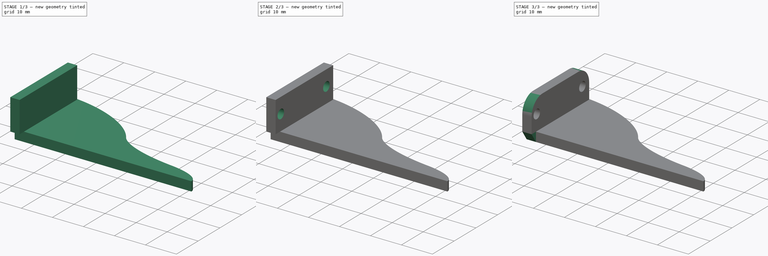
[diagram: build sequence overview — one tinted view per stage of 3, left to right]
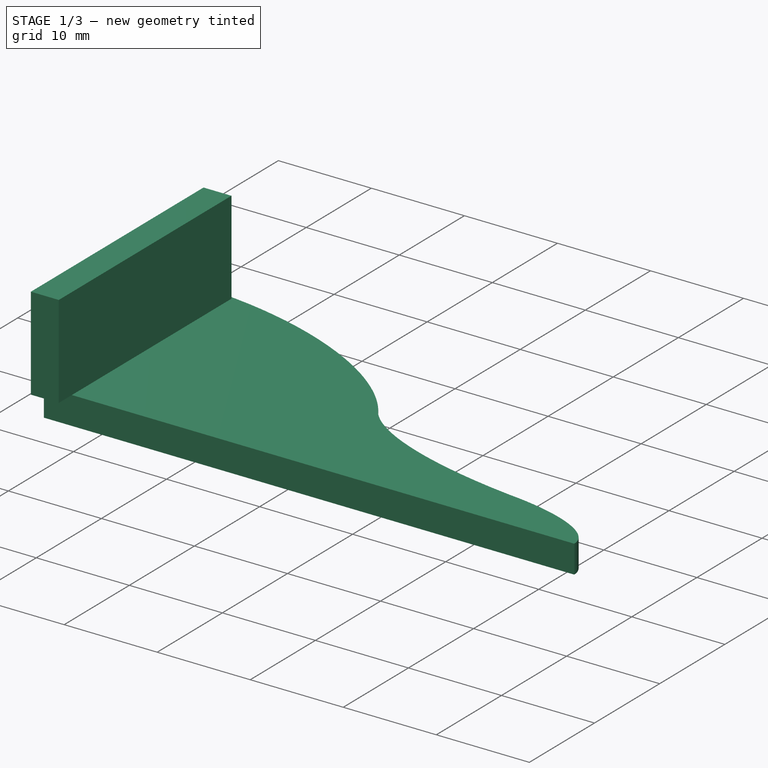
[diagram: stage 1 of 3 — iso view after this stage's code; geometry added in this stage tinted green]
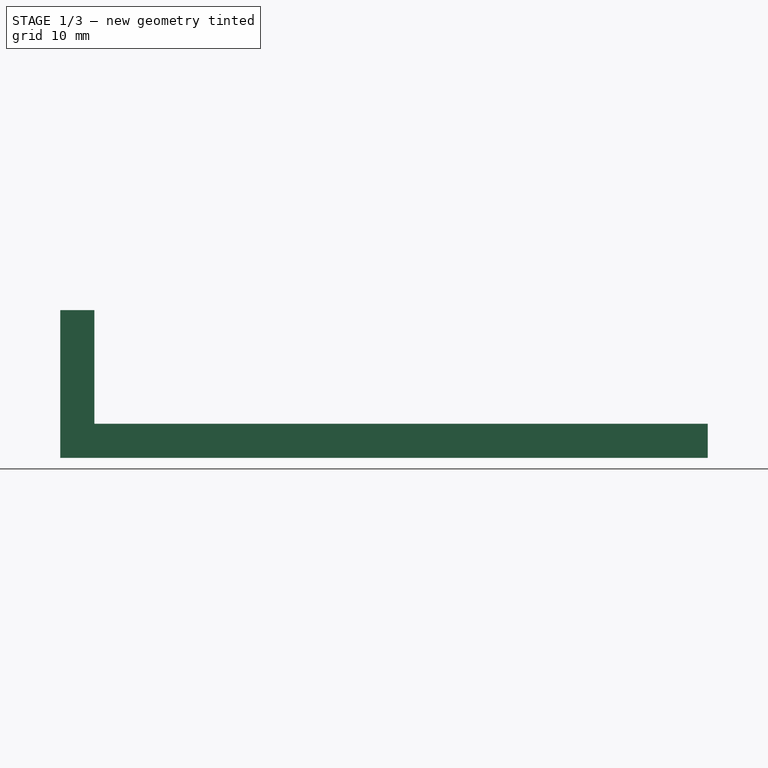
[diagram: stage 1 of 3 — front view after this stage's code; geometry added in this stage tinted green]
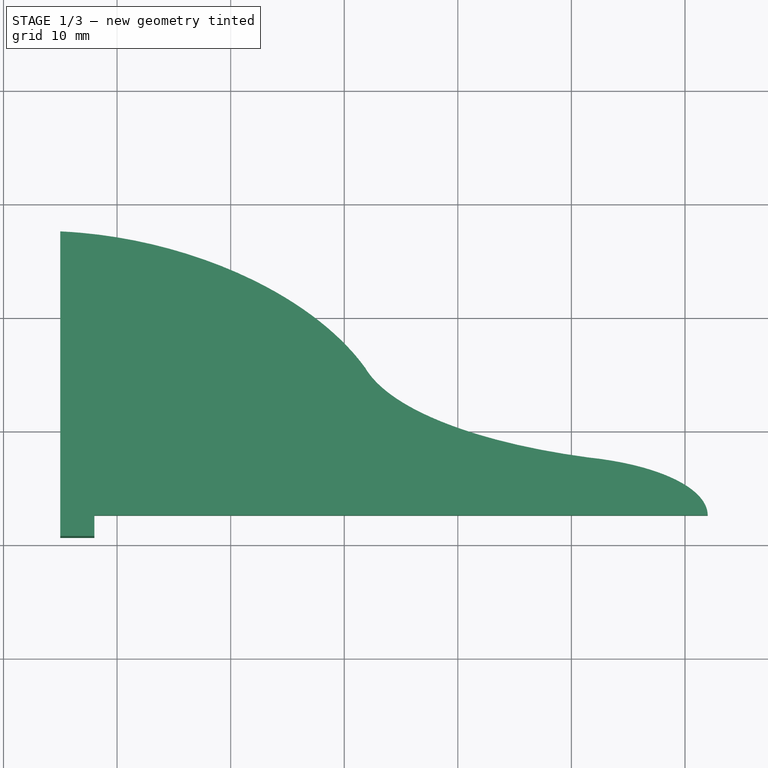
[diagram: stage 1 of 3 — top view after this stage's code; geometry added in this stage tinted green]
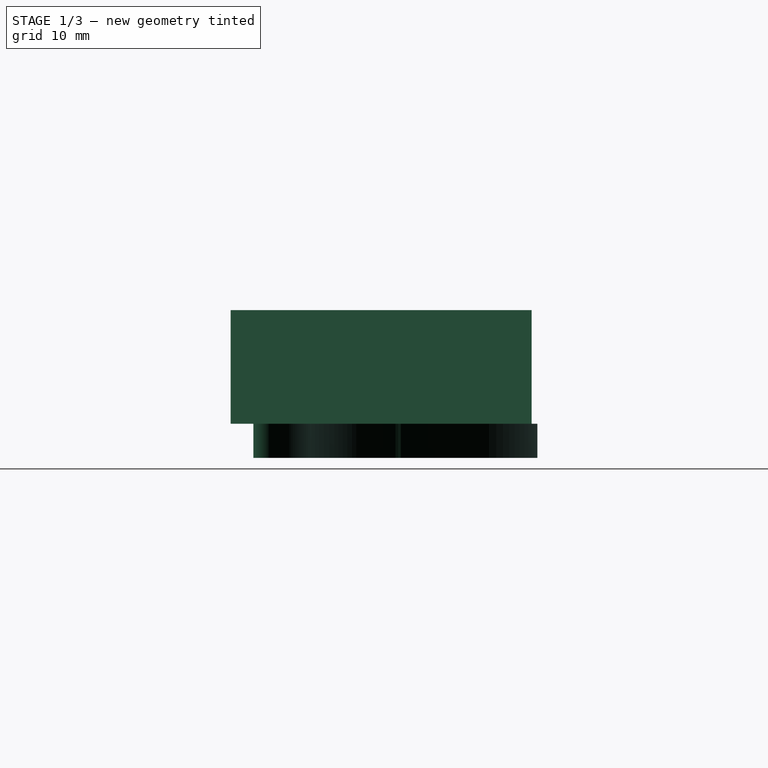
[diagram: stage 1 of 3 — right view after this stage's code; geometry added in this stage tinted green]
FCSTD DOCUMENT  (FreeCAD 0.19R24276 (Git))
Label: Lets_CW_rotation_part
License: All rights reserved
LicenseURL: http://en.wikipedia.org/wiki/All_rights_reserved
objects: Sketcher::SketchObject×4, PartDesign::Pad×3, PartDesign::Pocket×1, PartDesign::Fillet×1, PartDesign::Body×1
note: 15 computed .brp shape members not serialized (recipe doc carries the construction recipe); baked Part::Feature solids carry a one-line shape summary decoded from their .brp

FEATURE [Sketcher::SketchObject] Sketch
  FullyConstrained = false
  MapMode = 5
  Support = -> [XY_Plane]
  sketch-geometry (23):
    g0: LineSegment StartX=82 StartY=12.6 StartZ=0 EndX=82 EndY=0 EndZ=0
    g1: LineSegment StartX=25 StartY=37.6 StartZ=0 EndX=0 EndY=37.6 EndZ=0
    g2: ArcOfEllipse CenterX=83.347 CenterY=27.5295 CenterZ=0 NormalX=0 NormalY=0 NormalZ=1 MajorRadius=32.0864 MinorRadius=10.6154 AngleXU=3.13901 StartAngle=0.193341 EndAngle=1.19292
    g3: ArcOfEllipse CenterX=29.4623 CenterY=22.94 CenterZ=0 NormalX=0 NormalY=0 NormalZ=1 MajorRadius=25.1177 MinorRadius=13.9877 AngleXU=-0.218602 StartAngle=0.559519 EndAngle=1.87549
    g4: LineSegment StartX=0 StartY=0 StartZ=0 EndX=82 EndY=0 EndZ=0
    g5: LineSegment StartX=0 StartY=0 StartZ=0 EndX=0 EndY=37.6 EndZ=0
    g6: LineSegment StartX=82 StartY=12.6 StartZ=0 EndX=0 EndY=12.6 EndZ=0
    g7: ArcOfEllipse CenterX=67.4523 CenterY=12.6 CenterZ=0 NormalX=0 NormalY=0 NormalZ=1 MajorRadius=14.5477 MinorRadius=5.30122 AngleXU=0 StartAngle=0 EndAngle=1.29003
    g8: LineSegment StartX=82 StartY=12.6 StartZ=0 EndX=52.9046 EndY=12.6 EndZ=0
    g9: GeomPoint X=80.9997 Y=12.6 Z=0
    g10: GeomPoint X=53.9049 Y=12.6 Z=0
    g11: LineSegment StartX=67.4523 StartY=12.6 StartZ=0 EndX=72.8651 EndY=17.5206 EndZ=0
    g12: LineSegment StartX=72.8651 StartY=17.5206 StartZ=0 EndX=73.0456 EndY=30.9911 EndZ=0
    g13: LineSegment StartX=19 StartY=12.5755 StartZ=0 EndX=0 EndY=12.5755 EndZ=0
    g14: LineSegment StartX=0 StartY=12.5755 StartZ=0 EndX=0 EndY=0 EndZ=0
    g15: LineSegment StartX=0 StartY=0 StartZ=0 EndX=19 EndY=0 EndZ=0
    g16: LineSegment StartX=25 StartY=37.6 StartZ=0 EndX=25 EndY=12.6 EndZ=0
    g17: LineSegment StartX=25 StartY=37.6 StartZ=0 EndX=25 EndY=12.6 EndZ=0
    g18: LineSegment StartX=25 StartY=12.6 StartZ=0 EndX=82 EndY=12.6 EndZ=0
    g19: LineSegment StartX=25 StartY=12.6 StartZ=0 EndX=0 EndY=12.6 EndZ=0
    g20: LineSegment StartX=0 StartY=12.6 StartZ=0 EndX=0 EndY=0 EndZ=0
    g21: LineSegment StartX=0 StartY=0 StartZ=0 EndX=25 EndY=0 EndZ=0
    g22: LineSegment StartX=25 StartY=0 StartZ=0 EndX=25 EndY=12.6 EndZ=0
  constraints (51):
    c: PointOnObject(g0,g-1)
    c: Vertical(g0)
    c: Horizontal(g1)
    c: Coincident(g3,g2)
    c: Coincident(g4,g-1)
    c: Coincident(g4,g0)
    c: Coincident(g5,g-1)
    c: Vertical(g5)
    c: Coincident(g1,g5)
    c: PointOnObject(g6,g5)
    c: Horizontal(g6)
    c: DistanceY(g6,g1) = 25
    c: Coincident(g1,g3)
    c: InternalAlignment(g8,g7)
    c: InternalAlignment(g9,g7)
    c: InternalAlignment(g10,g7)
    c: Coincident(g11,g7)
    c: PointOnObject(g11,g7)
    c: PointOnObject(g12,g2)
    c: Coincident(g11,g12)
    c: Coincident(g8,g6)
    c: Horizontal(g8)
    c: Coincident(g0,g6)
    c: Coincident(g7,g2)
    c: Horizontal(g7,g6)
    c: Coincident(g13,g14)
    c: Coincident(g14,g15)
    c: Horizontal(g13)
    c: Horizontal(g15)
    c: Vertical(g14)
    c: Coincident(g14,g-1)
    c: Coincident(g16,g3)
    c: Vertical(g16)
    c: PointOnObject(g16,g6)
    c: DistanceX(g16,g7) = 57
    c: Coincident(g17,g3)
    c: Coincident(g18,g16)
    c: Coincident(g18,g7)
    c: Coincident(g17,g18)
    c: Coincident(g19,g20)
    c: Coincident(g20,g21)
    c: Coincident(g21,g22)
    c: Coincident(g22,g19)
    c: Horizontal(g19)
    c: Horizontal(g21)
    c: Vertical(g20)
    c: Vertical(g22)
    c: Coincident(g19,g17)
    c: Coincident(g20,g-1)
    c: DistanceX(g-1,g21) = 25
    c: DistanceY(g-1,g6) = 12.6
FEATURE [PartDesign::Pad] Pad
  Direction = (1,1,1)
  Length = 3
  Length2 = 100
  Profile = -> Sketch
  Type = 0
FEATURE [Sketcher::SketchObject] Sketch001
  FullyConstrained = true
  MapMode = 5
  Placement = pos=(25,0,0) rot=(0.57735,-0.57735,-0.57735;2.0944rad)
  Support = -> [Pad]
  sketch-geometry (4):
    g0: LineSegment StartX=-37.1 StartY=3 StartZ=0 EndX=-10.6 EndY=3 EndZ=0
    g1: LineSegment StartX=-10.6 StartY=3 StartZ=0 EndX=-10.6 EndY=13 EndZ=0
    g2: LineSegment StartX=-10.6 StartY=13 StartZ=0 EndX=-37.1 EndY=13 EndZ=0
    g3: LineSegment StartX=-37.1 StartY=13 StartZ=0 EndX=-37.1 EndY=3 EndZ=0
  constraints (12):
    c: Coincident(g0,g1)
    c: Coincident(g1,g2)
    c: Coincident(g2,g3)
    c: Coincident(g3,g0)
    c: Horizontal(g0)
    c: Horizontal(g2)
    c: Vertical(g1)
    c: Vertical(g3)
    c: DistanceX(g0,g-1) = 10.6
    c: DistanceX(g0,g0) = 26.5
    c: DistanceY(g1,g1) = 10
    c: DistanceY(g-1,g0) = 3
FEATURE [PartDesign::Pad] Pad001
  BaseFeature = -> Pad
  Direction = (1,1,1)
  Length = 3
  Length2 = 100
  Profile = -> Sketch001
  Reversed = true
  Type = 0
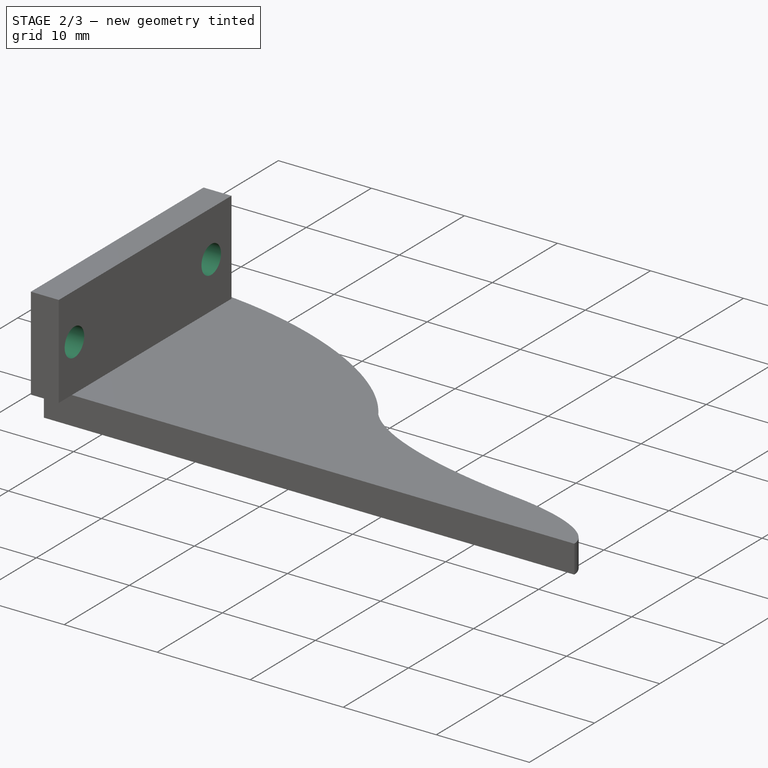
[diagram: stage 2 of 3 — iso view after this stage's code; geometry added in this stage tinted green]
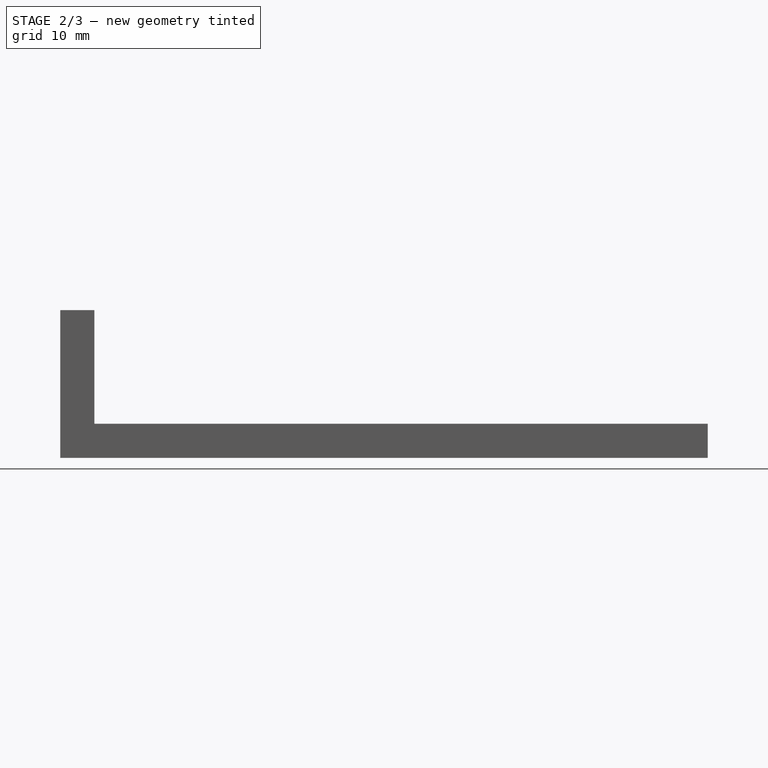
[diagram: stage 2 of 3 — front view after this stage's code; geometry added in this stage tinted green]
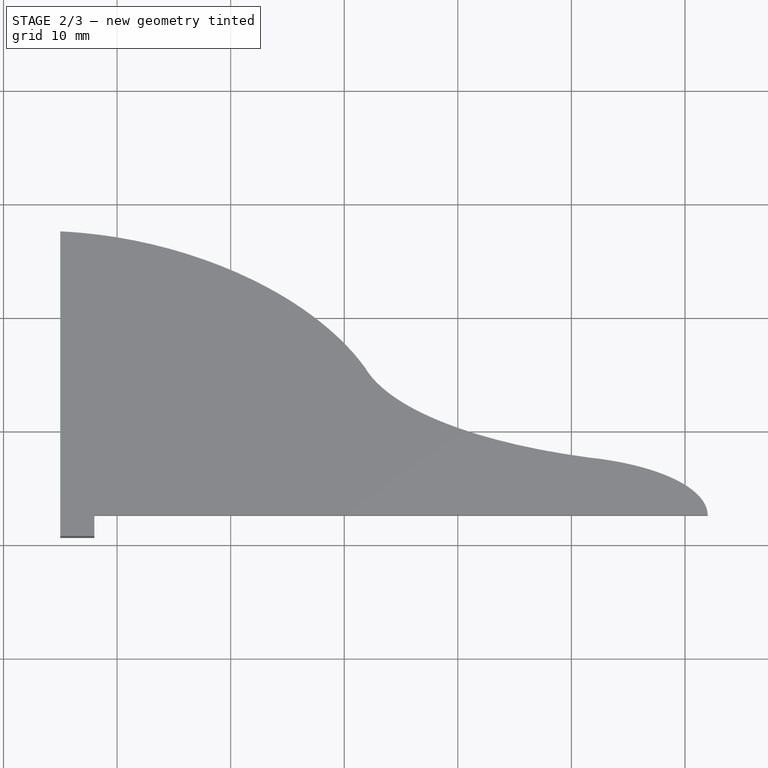
[diagram: stage 2 of 3 — top view after this stage's code; geometry added in this stage tinted green]
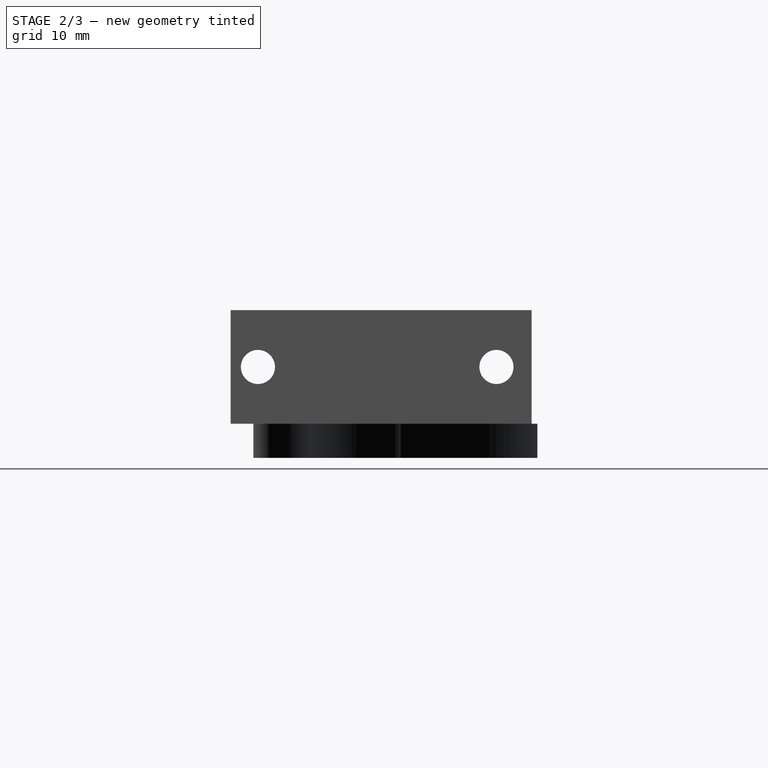
[diagram: stage 2 of 3 — right view after this stage's code; geometry added in this stage tinted green]
FEATURE [Sketcher::SketchObject] Sketch002
  FullyConstrained = true
  MapMode = 5
  Placement = pos=(25,0,0) rot=(0.57735,-0.57735,-0.57735;2.0944rad)
  Support = -> [Pad001]
  sketch-geometry (2):
    g0: Circle CenterX=-34 CenterY=8 CenterZ=0 NormalX=0 NormalY=0 NormalZ=1 AngleXU=0 Radius=1.5
    g1: Circle CenterX=-13 CenterY=8 CenterZ=0 NormalX=0 NormalY=0 NormalZ=1 AngleXU=0 Radius=1.5
  constraints (6):
    c: Horizontal(g0,g1)
    c: Diameter(g0) = 3
    c: Equal(g0,g1)
    c: DistanceX(g0,g1) = 21
    c: DistanceY(g-1,g1) = 8
    c: DistanceX(g1,g-1) = 13
FEATURE [PartDesign::Pocket] Pocket
  BaseFeature = -> Pad001
  Length = 5
  Length2 = 100
  Profile = -> Sketch002
  Type = 1
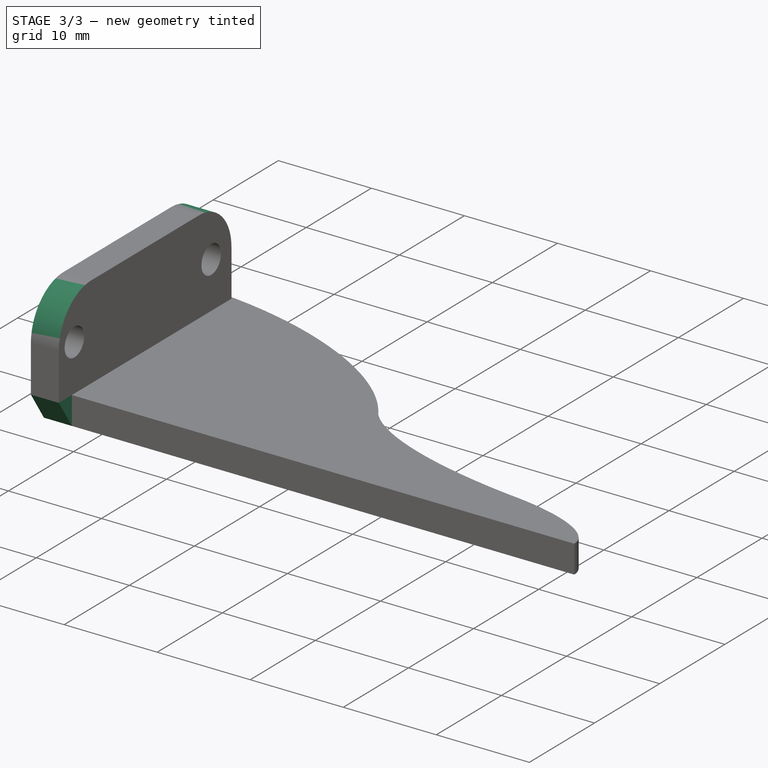
[diagram: stage 3 of 3 — iso view after this stage's code; geometry added in this stage tinted green]
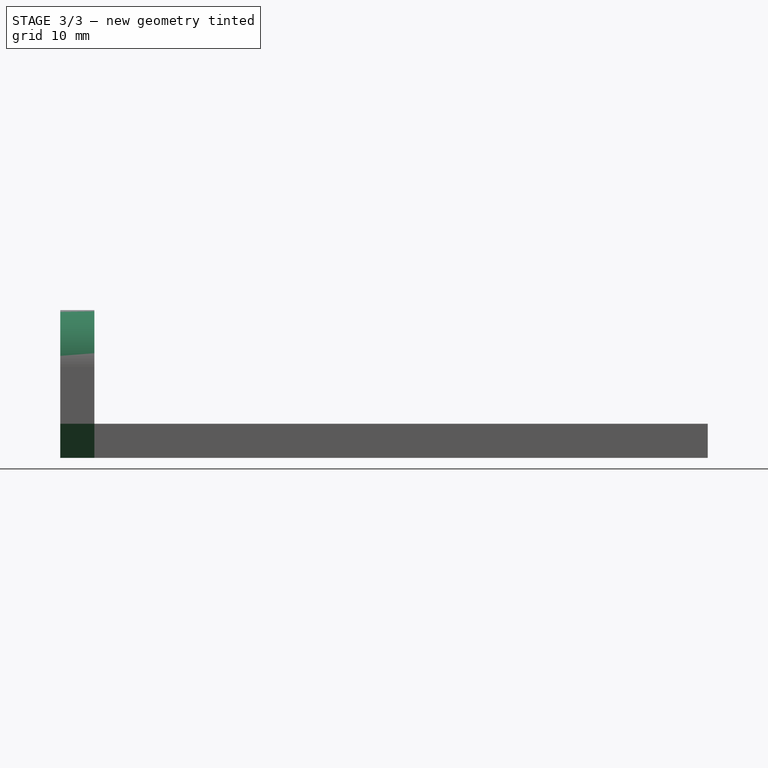
[diagram: stage 3 of 3 — front view after this stage's code; geometry added in this stage tinted green]
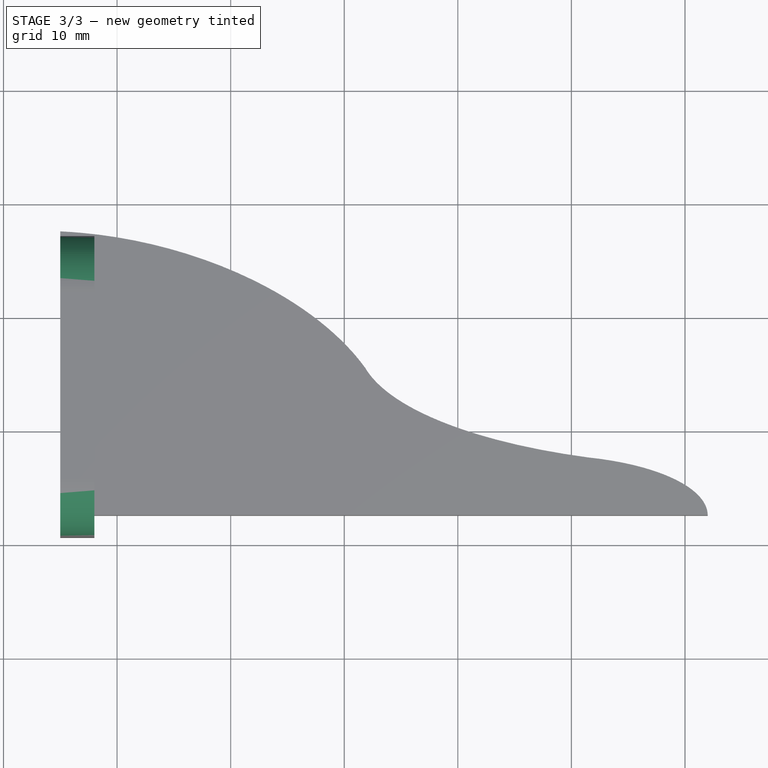
[diagram: stage 3 of 3 — top view after this stage's code; geometry added in this stage tinted green]
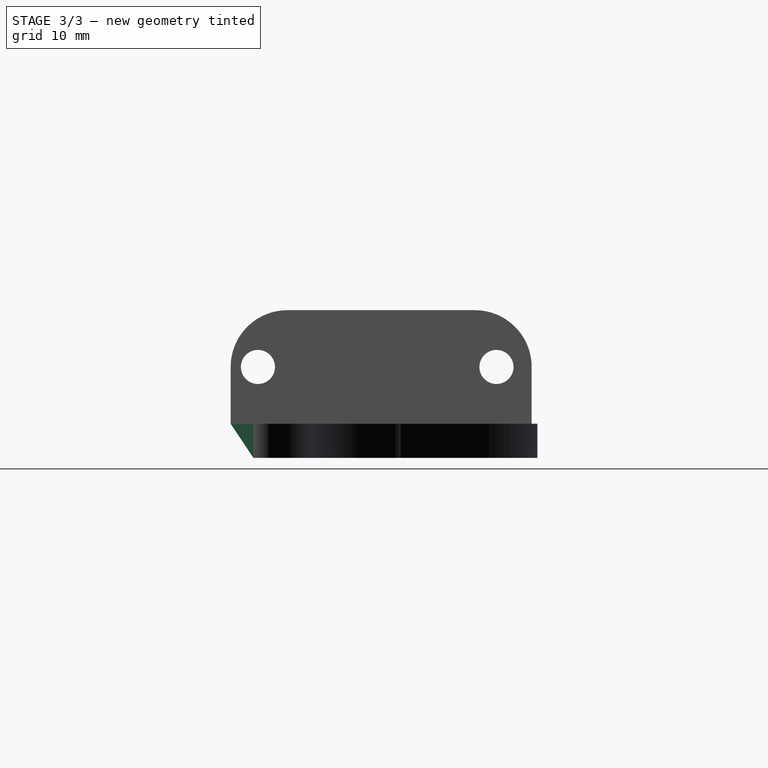
[diagram: stage 3 of 3 — right view after this stage's code; geometry added in this stage tinted green]
FEATURE [Sketcher::SketchObject] Sketch003
  FullyConstrained = true
  MapMode = 5
  Placement = pos=(25,0,0) rot=(0.57735,-0.57735,-0.57735;2.0944rad)
  Support = -> [Pocket]
  sketch-geometry (3):
    g0: LineSegment StartX=-12.6 StartY=0 StartZ=0 EndX=-10.6 EndY=3 EndZ=0
    g1: LineSegment StartX=-10.6 StartY=3 StartZ=0 EndX=-12.6 EndY=3 EndZ=0
    g2: LineSegment StartX=-12.6 StartY=3 StartZ=0 EndX=-12.6 EndY=0 EndZ=0
  constraints (9):
    c: PointOnObject(g0,g-1)
    c: Coincident(g1,g0)
    c: Coincident(g2,g1)
    c: Coincident(g2,g0)
    c: Vertical(g2)
    c: DistanceX(g0,g-1) = 12.6
    c: Horizontal(g1)
    c: DistanceY(g2,g2) = 3
    c: DistanceX(g1,g1) = 2
FEATURE [PartDesign::Pad] Pad002
  BaseFeature = -> Pocket
  Direction = (1,1,1)
  Length = 3
  Length2 = 100
  Profile = -> Sketch003
  Reversed = true
  Type = 0
FEATURE [PartDesign::Fillet] Fillet
  Base = -> Pad002 [Edge37,Edge24]
  BaseFeature = -> Pad002
  Radius = 5
  SupportTransform = false
FEATURE [PartDesign::Body] Body
  Group = -> [Sketch,Pad,Sketch001,Pad001,Sketch002,Pocket,Sketch003,Pad002,Fillet]
  Origin = -> Origin
  Tip = -> Fillet
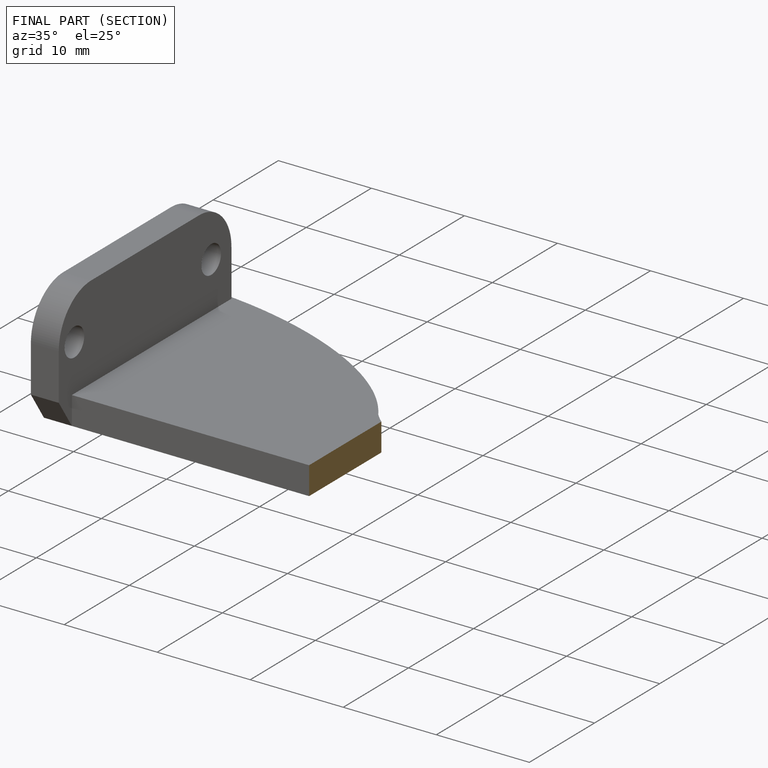
[diagram: finished part — half-section view (interior)]
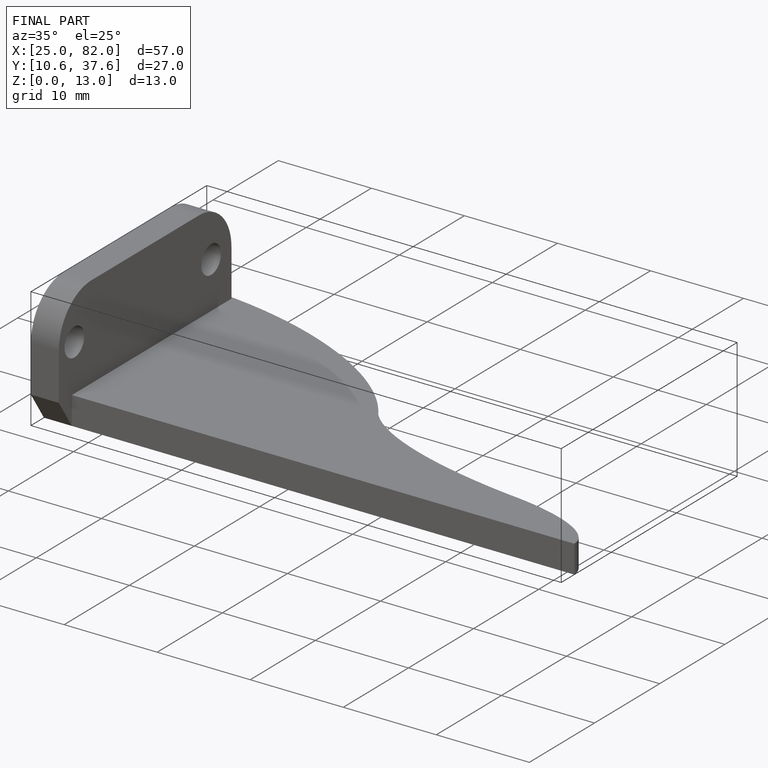
[diagram: finished part — iso view with bounding-box wireframe]
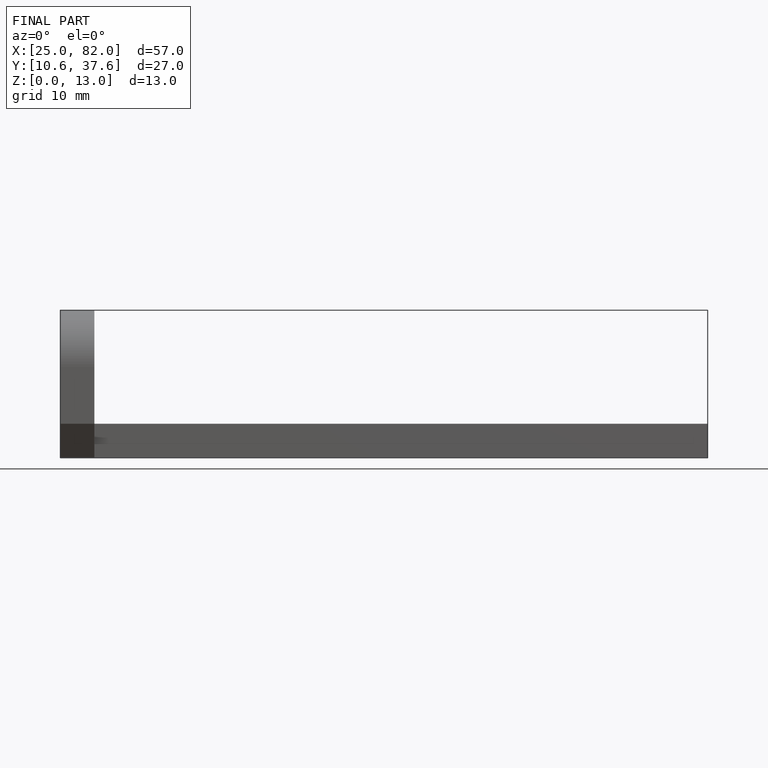
[diagram: finished part — front view with bounding-box wireframe]
